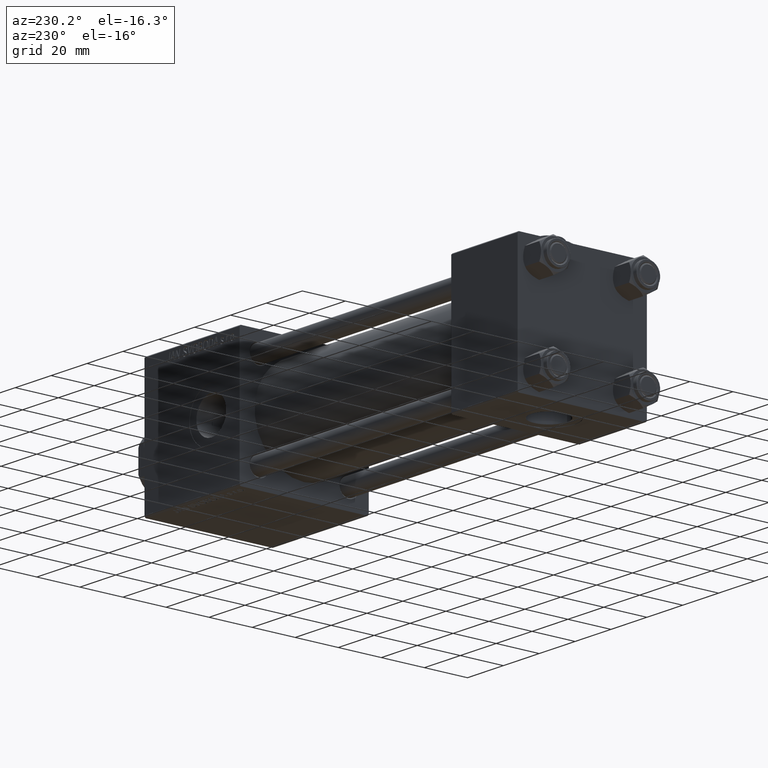
[diagram: clean part render]
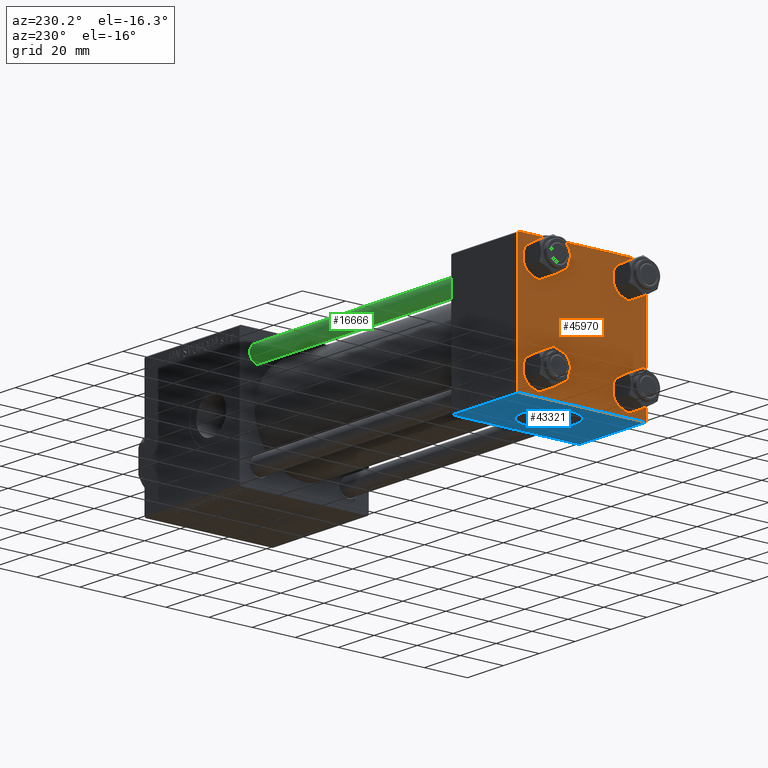
[diagram: same view with three faces highlighted in distinct colors, each labeled with its STEP entity id]
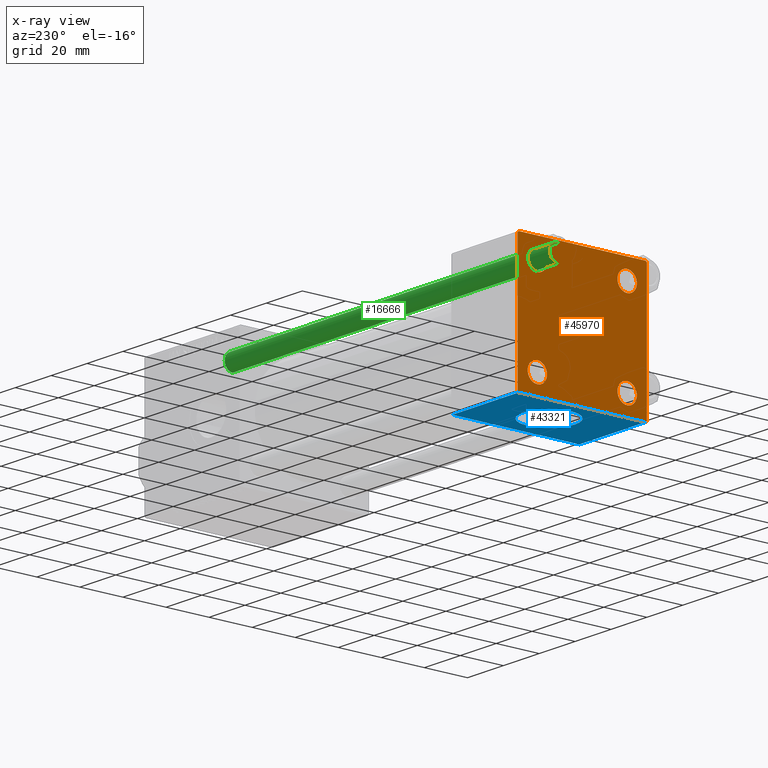
[diagram: x-ray of the same camera — body ghosted, the three highlighted faces saturated]
A machine part, auxiliary view with three faces highlighted in distinct colors.
The next image is the same camera in x-ray (body ghosted, the three faces saturated) — at least one of them is partly hidden behind the body in this view.
Their STEP definitions:

[orange] entity #45970 — the highlighted planar face has unit normal (-1, 0, 0).
#754 = FACE_BOUND ( 'NONE', #36782, .T. ) ;
#982 = EDGE_CURVE ( 'NONE', #6886, #13692, #39323, .T. ) ;
#1013 = DIRECTION ( 'NONE',  ( -0.000000000000000000, 0.000000000000000000, 1.000000000000000000 ) ) ;
#1236 = CARTESIAN_POINT ( 'NONE',  ( 0.000000000000000000, -20.84999999999999076, 20.85000000000000497 ) ) ;
#1262 = DIRECTION ( 'NONE',  ( 1.000000000000000000, -0.000000000000000000, 0.000000000000000000 ) ) ;
#1392 = ORIENTED_EDGE ( 'NONE', *, *, #18025, .T. ) ;
#1757 = EDGE_CURVE ( 'NONE', #47265, #15448, #12232, .T. ) ;
#1843 = LINE ( 'NONE', #6554, #37030 ) ;
#2146 = CARTESIAN_POINT ( 'NONE',  ( 0.000000000000000000, 29.49999999999997868, -30.00000000000000000 ) ) ;
#2162 = ORIENTED_EDGE ( 'NONE', *, *, #13747, .F. ) ;
#3299 = EDGE_LOOP ( 'NONE', ( #3541, #23882, #20910, #31241, #2162, #12228, #50567, #43318 ) ) ;
#3541 = ORIENTED_EDGE ( 'NONE', *, *, #13705, .T. ) ;
#4228 = CIRCLE ( 'NONE', #21070, 4.500000000000017764 ) ;
#5073 = CARTESIAN_POINT ( 'NONE',  ( 0.000000000000000000, 29.99999999999999289, 30.00000000000000000 ) ) ;
#5479 = CARTESIAN_POINT ( 'NONE',  ( 0.000000000000000000, 0.000000000000000000, 0.000000000000000000 ) ) ;
#5732 = EDGE_CURVE ( 'NONE', #17704, #6859, #29227, .T. ) ;
#5848 = VERTEX_POINT ( 'NONE', #19386 ) ;
#6258 = VECTOR ( 'NONE', #51529, 1000.000000000000114 ) ;
#6371 = EDGE_CURVE ( 'NONE', #29840, #6419, #27304, .T. ) ;
#6419 = VERTEX_POINT ( 'NONE', #29048 ) ;
#6554 = CARTESIAN_POINT ( 'NONE',  ( -0.000000000000000000, -29.74999999999999645, 29.74999999999999645 ) ) ;
#6728 = EDGE_CURVE ( 'NONE', #28764, #28138, #35417, .T. ) ;
#6859 = VERTEX_POINT ( 'NONE', #27480 ) ;
#6886 = VERTEX_POINT ( 'NONE', #20339 ) ;
#8365 = DIRECTION ( 'NONE',  ( 1.000000000000000000, -0.000000000000000000, 0.000000000000000000 ) ) ;
#8906 = FACE_BOUND ( 'NONE', #43920, .T. ) ;
#9105 = EDGE_CURVE ( 'NONE', #47594, #13857, #41762, .T. ) ;
#9426 = DIRECTION ( 'NONE',  ( 0.000000000000000000, 0.7071067811865474617, -0.7071067811865474617 ) ) ;
#10473 = DIRECTION ( 'NONE',  ( 0.000000000000000000, 0.000000000000000000, 1.000000000000000000 ) ) ;
#10574 = DIRECTION ( 'NONE',  ( 0.000000000000000000, 0.000000000000000000, 1.000000000000000000 ) ) ;
#10995 = EDGE_CURVE ( 'NONE', #5848, #19858, #37603, .T. ) ;
#12147 = CARTESIAN_POINT ( 'NONE',  ( 0.000000000000000000, -20.84999999999999076, -16.34999999999998721 ) ) ;
#12228 = ORIENTED_EDGE ( 'NONE', *, *, #43879, .T. ) ;
#12232 = CIRCLE ( 'NONE', #45980, 4.500000000000017764 ) ;
#12680 = AXIS2_PLACEMENT_3D ( 'NONE', #5479, #13639, #1013 ) ;
#12863 = DIRECTION ( 'NONE',  ( 0.000000000000000000, 0.000000000000000000, 1.000000000000000000 ) ) ;
#12869 = PLANE ( 'NONE',  #12680 ) ;
#13358 = DIRECTION ( 'NONE',  ( 0.000000000000000000, 0.000000000000000000, 1.000000000000000000 ) ) ;
#13376 = FACE_BOUND ( 'NONE', #43162, .T. ) ;
#13639 = DIRECTION ( 'NONE',  ( -1.000000000000000000, 0.000000000000000000, -0.000000000000000000 ) ) ;
#13692 = VERTEX_POINT ( 'NONE', #2146 ) ;
#13705 = EDGE_CURVE ( 'NONE', #6859, #6886, #50199, .T. ) ;
#13742 = DIRECTION ( 'NONE',  ( 0.000000000000000000, 0.000000000000000000, -1.000000000000000000 ) ) ;
#13747 = EDGE_CURVE ( 'NONE', #21481, #28138, #33845, .T. ) ;
#13844 = AXIS2_PLACEMENT_3D ( 'NONE', #38318, #45998, #10574 ) ;
#13857 = VERTEX_POINT ( 'NONE', #34542 ) ;
#14309 = VECTOR ( 'NONE', #46236, 1000.000000000000000 ) ;
#15003 = AXIS2_PLACEMENT_3D ( 'NONE', #23664, #15470, #10473 ) ;
#15448 = VERTEX_POINT ( 'NONE', #42820 ) ;
#15470 = DIRECTION ( 'NONE',  ( 1.000000000000000000, -0.000000000000000000, 0.000000000000000000 ) ) ;
#16071 = CARTESIAN_POINT ( 'NONE',  ( 0.000000000000000000, 29.74999999999957723, -29.75000000000040501 ) ) ;
#16551 = CARTESIAN_POINT ( 'NONE',  ( 0.000000000000000000, 20.84999999999999787, -20.85000000000000142 ) ) ;
#16790 = DIRECTION ( 'NONE',  ( 0.000000000000000000, 0.000000000000000000, 1.000000000000000000 ) ) ;
#17704 = VERTEX_POINT ( 'NONE', #29543 ) ;
#17948 = CARTESIAN_POINT ( 'NONE',  ( 0.000000000000000000, 29.99999999999999289, 30.00000000000000000 ) ) ;
#18025 = EDGE_CURVE ( 'NONE', #19858, #5848, #45340, .T. ) ;
#18071 = EDGE_CURVE ( 'NONE', #13857, #47594, #22537, .T. ) ;
#19350 = ORIENTED_EDGE ( 'NONE', *, *, #10995, .T. ) ;
#19386 = CARTESIAN_POINT ( 'NONE',  ( 0.000000000000000000, 20.84999999999999787, -25.35000000000001918 ) ) ;
#19699 = DIRECTION ( 'NONE',  ( 1.000000000000000000, -0.000000000000000000, 0.000000000000000000 ) ) ;
#19858 = VERTEX_POINT ( 'NONE', #23135 ) ;
#20339 = CARTESIAN_POINT ( 'NONE',  ( 0.000000000000000000, 29.99999999999999289, -29.50000000000000000 ) ) ;
#20669 = AXIS2_PLACEMENT_3D ( 'NONE', #1236, #24713, #40833 ) ;
#20910 = ORIENTED_EDGE ( 'NONE', *, *, #37842, .T. ) ;
#21032 = FACE_OUTER_BOUND ( 'NONE', #3299, .T. ) ;
#21070 = AXIS2_PLACEMENT_3D ( 'NONE', #45276, #48978, #40791 ) ;
#21481 = VERTEX_POINT ( 'NONE', #51365 ) ;
#22310 = DIRECTION ( 'NONE',  ( 1.000000000000000000, -0.000000000000000000, 0.000000000000000000 ) ) ;
#22537 = CIRCLE ( 'NONE', #49560, 4.500000000000017764 ) ;
#23135 = CARTESIAN_POINT ( 'NONE',  ( 0.000000000000000000, 20.84999999999999787, -16.34999999999998366 ) ) ;
#23268 = AXIS2_PLACEMENT_3D ( 'NONE', #16551, #1262, #12863 ) ;
#23664 = CARTESIAN_POINT ( 'NONE',  ( 0.000000000000000000, 20.84999999999999787, 20.85000000000000142 ) ) ;
#23708 = DIRECTION ( 'NONE',  ( 0.000000000000000000, -1.000000000000000000, -1.156482317317871725E-16 ) ) ;
#23799 = ORIENTED_EDGE ( 'NONE', *, *, #36756, .T. ) ;
#23839 = EDGE_CURVE ( 'NONE', #6419, #29840, #4228, .T. ) ;
#23882 = ORIENTED_EDGE ( 'NONE', *, *, #982, .T. ) ;
#24208 = CARTESIAN_POINT ( 'NONE',  ( 0.000000000000000000, 20.84999999999999787, 20.85000000000000142 ) ) ;
#24713 = DIRECTION ( 'NONE',  ( 1.000000000000000000, -0.000000000000000000, 0.000000000000000000 ) ) ;
#24860 = CARTESIAN_POINT ( 'NONE',  ( 0.000000000000000000, -29.50000000000000000, -30.00000000000000711 ) ) ;
#24913 = EDGE_LOOP ( 'NONE', ( #23799, #42111 ) ) ;
#24988 = CARTESIAN_POINT ( 'NONE',  ( 0.000000000000000000, 29.74999999999999645, 29.74999999999999645 ) ) ;
#25894 = DIRECTION ( 'NONE',  ( 0.000000000000000000, 0.000000000000000000, -1.000000000000000000 ) ) ;
#26633 = ORIENTED_EDGE ( 'NONE', *, *, #9105, .T. ) ;
#26697 = VECTOR ( 'NONE', #25894, 1000.000000000000000 ) ;
#27304 = CIRCLE ( 'NONE', #13844, 4.500000000000017764 ) ;
#27423 = CARTESIAN_POINT ( 'NONE',  ( 0.000000000000000000, -20.84999999999999076, 25.35000000000002274 ) ) ;
#27480 = CARTESIAN_POINT ( 'NONE',  ( 0.000000000000000000, 29.99999999999999289, 29.50000000000000000 ) ) ;
#28061 = EDGE_CURVE ( 'NONE', #17704, #42564, #37789, .T. ) ;
#28138 = VERTEX_POINT ( 'NONE', #43041 ) ;
#28764 = VERTEX_POINT ( 'NONE', #24860 ) ;
#29048 = CARTESIAN_POINT ( 'NONE',  ( 0.000000000000000000, -20.84999999999999076, -25.35000000000002274 ) ) ;
#29227 = LINE ( 'NONE', #24988, #43911 ) ;
#29543 = CARTESIAN_POINT ( 'NONE',  ( 0.000000000000000000, 29.49999999999999289, 30.00000000000000000 ) ) ;
#29811 = DIRECTION ( 'NONE',  ( -0.000000000000000000, 0.7071067811865474617, 0.7071067811865474617 ) ) ;
#29840 = VERTEX_POINT ( 'NONE', #12147 ) ;
#31037 = ORIENTED_EDGE ( 'NONE', *, *, #23839, .T. ) ;
#31241 = ORIENTED_EDGE ( 'NONE', *, *, #6728, .T. ) ;
#33556 = AXIS2_PLACEMENT_3D ( 'NONE', #48254, #8365, #44023 ) ;
#33675 = CARTESIAN_POINT ( 'NONE',  ( 0.000000000000000000, 20.84999999999999787, 16.34999999999998366 ) ) ;
#33845 = LINE ( 'NONE', #45731, #26697 ) ;
#34542 = CARTESIAN_POINT ( 'NONE',  ( 0.000000000000000000, -20.84999999999999076, 16.34999999999998721 ) ) ;
#35417 = LINE ( 'NONE', #47311, #6258 ) ;
#35569 = ORIENTED_EDGE ( 'NONE', *, *, #6371, .T. ) ;
#36756 = EDGE_CURVE ( 'NONE', #15448, #47265, #52137, .T. ) ;
#36782 = EDGE_LOOP ( 'NONE', ( #1392, #19350 ) ) ;
#37030 = VECTOR ( 'NONE', #29811, 1000.000000000000114 ) ;
#37603 = CIRCLE ( 'NONE', #23268, 4.500000000000017764 ) ;
#37679 = FACE_BOUND ( 'NONE', #24913, .T. ) ;
#37789 = LINE ( 'NONE', #5073, #14309 ) ;
#37842 = EDGE_CURVE ( 'NONE', #13692, #28764, #47489, .T. ) ;
#38318 = CARTESIAN_POINT ( 'NONE',  ( 0.000000000000000000, -20.84999999999999076, -20.85000000000000497 ) ) ;
#39323 = LINE ( 'NONE', #16071, #47658 ) ;
#39797 = CARTESIAN_POINT ( 'NONE',  ( 0.000000000000000000, -20.84999999999999076, 20.85000000000000497 ) ) ;
#39855 = DIRECTION ( 'NONE',  ( -0.000000000000000000, -0.7071067811865574537, -0.7071067811865376918 ) ) ;
#40791 = DIRECTION ( 'NONE',  ( 0.000000000000000000, 0.000000000000000000, 1.000000000000000000 ) ) ;
#40833 = DIRECTION ( 'NONE',  ( 0.000000000000000000, 0.000000000000000000, 1.000000000000000000 ) ) ;
#41762 = CIRCLE ( 'NONE', #20669, 4.500000000000017764 ) ;
#42111 = ORIENTED_EDGE ( 'NONE', *, *, #1757, .T. ) ;
#42564 = VERTEX_POINT ( 'NONE', #45326 ) ;
#42820 = CARTESIAN_POINT ( 'NONE',  ( 0.000000000000000000, 20.84999999999999787, 25.35000000000001918 ) ) ;
#42960 = ORIENTED_EDGE ( 'NONE', *, *, #18071, .T. ) ;
#43041 = CARTESIAN_POINT ( 'NONE',  ( 0.000000000000000000, -30.00000000000000000, -29.50000000000001776 ) ) ;
#43162 = EDGE_LOOP ( 'NONE', ( #26633, #42960 ) ) ;
#43318 = ORIENTED_EDGE ( 'NONE', *, *, #5732, .T. ) ;
#43879 = EDGE_CURVE ( 'NONE', #21481, #42564, #1843, .T. ) ;
#43911 = VECTOR ( 'NONE', #9426, 1000.000000000000114 ) ;
#43920 = EDGE_LOOP ( 'NONE', ( #35569, #31037 ) ) ;
#44023 = DIRECTION ( 'NONE',  ( 0.000000000000000000, 0.000000000000000000, 1.000000000000000000 ) ) ;
#45276 = CARTESIAN_POINT ( 'NONE',  ( 0.000000000000000000, -20.84999999999999076, -20.85000000000000497 ) ) ;
#45326 = CARTESIAN_POINT ( 'NONE',  ( 0.000000000000000000, -29.49999999999998579, 29.99999999999999289 ) ) ;
#45340 = CIRCLE ( 'NONE', #33556, 4.500000000000017764 ) ;
#45731 = CARTESIAN_POINT ( 'NONE',  ( 0.000000000000000000, -30.00000000000000000, 29.99999999999999289 ) ) ;
#45970 = ADVANCED_FACE ( 'NONE', ( #13376, #8906, #754, #37679, #21032 ), #12869, .T. ) ;
#45980 = AXIS2_PLACEMENT_3D ( 'NONE', #24208, #22310, #13358 ) ;
#45998 = DIRECTION ( 'NONE',  ( 1.000000000000000000, -0.000000000000000000, 0.000000000000000000 ) ) ;
#46236 = DIRECTION ( 'NONE',  ( 0.000000000000000000, -1.000000000000000000, -1.156482317317871725E-16 ) ) ;
#47265 = VERTEX_POINT ( 'NONE', #33675 ) ;
#47311 = CARTESIAN_POINT ( 'NONE',  ( 0.000000000000000000, -29.75000000000001066, -29.75000000000001066 ) ) ;
#47489 = LINE ( 'NONE', #47746, #52166 ) ;
#47594 = VERTEX_POINT ( 'NONE', #27423 ) ;
#47658 = VECTOR ( 'NONE', #39855, 999.9999999999998863 ) ;
#47746 = CARTESIAN_POINT ( 'NONE',  ( 0.000000000000000000, 29.99999999999999289, -30.00000000000000000 ) ) ;
#48254 = CARTESIAN_POINT ( 'NONE',  ( 0.000000000000000000, 20.84999999999999787, -20.85000000000000142 ) ) ;
#48978 = DIRECTION ( 'NONE',  ( 1.000000000000000000, -0.000000000000000000, 0.000000000000000000 ) ) ;
#49489 = VECTOR ( 'NONE', #13742, 1000.000000000000000 ) ;
#49560 = AXIS2_PLACEMENT_3D ( 'NONE', #39797, #19699, #16790 ) ;
#50199 = LINE ( 'NONE', #17948, #49489 ) ;
#50567 = ORIENTED_EDGE ( 'NONE', *, *, #28061, .F. ) ;
#51365 = CARTESIAN_POINT ( 'NONE',  ( 0.000000000000000000, -30.00000000000000000, 29.49999999999999289 ) ) ;
#51529 = DIRECTION ( 'NONE',  ( 0.000000000000000000, -0.7071067811865474617, 0.7071067811865474617 ) ) ;
#52137 = CIRCLE ( 'NONE', #15003, 4.500000000000017764 ) ;
#52166 = VECTOR ( 'NONE', #23708, 1000.000000000000000 ) ;

[blue] entity #43321 — the highlighted planar face has unit normal (0, 0, -1).
#1042 = ORIENTED_EDGE ( 'NONE', *, *, #31456, .T. ) ;
#1725 = CARTESIAN_POINT ( 'NONE',  ( 37.00000000000000000, 29.99999999999999289, -30.00000000000000000 ) ) ;
#2146 = CARTESIAN_POINT ( 'NONE',  ( 0.000000000000000000, 29.49999999999997868, -30.00000000000000000 ) ) ;
#2409 = DIRECTION ( 'NONE',  ( 0.000000000000000000, 1.000000000000000000, -2.891205793294677833E-16 ) ) ;
#3870 = CARTESIAN_POINT ( 'NONE',  ( 18.50000000000000355, 12.00000000000000355, -30.00000000000000711 ) ) ;
#4570 = LINE ( 'NONE', #20635, #27906 ) ;
#5124 = CIRCLE ( 'NONE', #43052, 12.00000000000000178 ) ;
#7350 = VERTEX_POINT ( 'NONE', #3870 ) ;
#7518 = CIRCLE ( 'NONE', #46308, 12.00000000000000178 ) ;
#11073 = DIRECTION ( 'NONE',  ( 1.000000000000000000, 0.000000000000000000, 0.000000000000000000 ) ) ;
#13692 = VERTEX_POINT ( 'NONE', #2146 ) ;
#13746 = CARTESIAN_POINT ( 'NONE',  ( 18.50000000000000355, 2.265018109976774967E-15, -30.00000000000000355 ) ) ;
#13832 = DIRECTION ( 'NONE',  ( 0.000000000000000000, -1.000000000000000000, -1.156482317317871725E-16 ) ) ;
#16050 = CARTESIAN_POINT ( 'NONE',  ( 18.50000000000000355, -12.00000000000000000, -30.00000000000000000 ) ) ;
#18013 = CARTESIAN_POINT ( 'NONE',  ( 18.50000000000000355, 2.265018109976774967E-15, -30.00000000000000355 ) ) ;
#18273 = DIRECTION ( 'NONE',  ( 0.000000000000000000, 1.000000000000000000, -2.891205793294677833E-16 ) ) ;
#19762 = LINE ( 'NONE', #44085, #34592 ) ;
#19933 = ORIENTED_EDGE ( 'NONE', *, *, #29394, .T. ) ;
#20501 = DIRECTION ( 'NONE',  ( 0.000000000000000000, 1.000000000000000000, 1.156482317317871725E-16 ) ) ;
#20635 = CARTESIAN_POINT ( 'NONE',  ( 0.000000000000000000, -29.50000000000001066, -30.00000000000000711 ) ) ;
#21013 = CARTESIAN_POINT ( 'NONE',  ( 37.00000000000000000, 29.99999999999999289, -30.00000000000000000 ) ) ;
#21200 = EDGE_CURVE ( 'NONE', #39080, #7350, #7518, .T. ) ;
#22815 = VERTEX_POINT ( 'NONE', #47303 ) ;
#23518 = EDGE_LOOP ( 'NONE', ( #40024, #28926 ) ) ;
#23522 = AXIS2_PLACEMENT_3D ( 'NONE', #21013, #40588, #20501 ) ;
#23708 = DIRECTION ( 'NONE',  ( 0.000000000000000000, -1.000000000000000000, -1.156482317317871725E-16 ) ) ;
#24468 = FACE_BOUND ( 'NONE', #23518, .T. ) ;
#24860 = CARTESIAN_POINT ( 'NONE',  ( 0.000000000000000000, -29.50000000000000000, -30.00000000000000711 ) ) ;
#25389 = DIRECTION ( 'NONE',  ( -1.000000000000000000, 0.000000000000000000, 0.000000000000000000 ) ) ;
#27906 = VECTOR ( 'NONE', #25389, 1000.000000000000000 ) ;
#28423 = ORIENTED_EDGE ( 'NONE', *, *, #42209, .T. ) ;
#28553 = EDGE_CURVE ( 'NONE', #7350, #39080, #5124, .T. ) ;
#28640 = ORIENTED_EDGE ( 'NONE', *, *, #37842, .F. ) ;
#28764 = VERTEX_POINT ( 'NONE', #24860 ) ;
#28926 = ORIENTED_EDGE ( 'NONE', *, *, #21200, .F. ) ;
#28963 = FACE_OUTER_BOUND ( 'NONE', #46069, .T. ) ;
#29394 = EDGE_CURVE ( 'NONE', #41566, #28764, #4570, .T. ) ;
#31456 = EDGE_CURVE ( 'NONE', #22815, #41566, #37878, .T. ) ;
#34592 = VECTOR ( 'NONE', #11073, 1000.000000000000000 ) ;
#37842 = EDGE_CURVE ( 'NONE', #13692, #28764, #47489, .T. ) ;
#37878 = LINE ( 'NONE', #1725, #38938 ) ;
#38938 = VECTOR ( 'NONE', #13832, 1000.000000000000000 ) ;
#39080 = VERTEX_POINT ( 'NONE', #16050 ) ;
#40024 = ORIENTED_EDGE ( 'NONE', *, *, #28553, .F. ) ;
#40588 = DIRECTION ( 'NONE',  ( 0.000000000000000000, 1.156482317317871725E-16, -1.000000000000000000 ) ) ;
#41566 = VERTEX_POINT ( 'NONE', #43286 ) ;
#42209 = EDGE_CURVE ( 'NONE', #13692, #22815, #19762, .T. ) ;
#42282 = DIRECTION ( 'NONE',  ( 0.000000000000000000, -1.734723475976806848E-16, -1.000000000000000000 ) ) ;
#43052 = AXIS2_PLACEMENT_3D ( 'NONE', #18013, #45529, #18273 ) ;
#43286 = CARTESIAN_POINT ( 'NONE',  ( 37.00000000000000000, -29.50000000000000000, -30.00000000000000711 ) ) ;
#43321 = ADVANCED_FACE ( 'NONE', ( #24468, #28963 ), #44558, .T. ) ;
#44085 = CARTESIAN_POINT ( 'NONE',  ( 37.00000000000000000, 29.49999999999997868, -30.00000000000000000 ) ) ;
#44558 = PLANE ( 'NONE',  #23522 ) ;
#45529 = DIRECTION ( 'NONE',  ( 0.000000000000000000, -1.734723475976806848E-16, -1.000000000000000000 ) ) ;
#46069 = EDGE_LOOP ( 'NONE', ( #28640, #28423, #1042, #19933 ) ) ;
#46308 = AXIS2_PLACEMENT_3D ( 'NONE', #13746, #42282, #2409 ) ;
#47303 = CARTESIAN_POINT ( 'NONE',  ( 37.00000000000000000, 29.49999999999997868, -30.00000000000000000 ) ) ;
#47489 = LINE ( 'NONE', #47746, #52166 ) ;
#47746 = CARTESIAN_POINT ( 'NONE',  ( 0.000000000000000000, 29.99999999999999289, -30.00000000000000000 ) ) ;
#52166 = VECTOR ( 'NONE', #23708, 1000.000000000000000 ) ;

[green] entity #16666 — the highlighted cylindrical surface (edge-blend (fillet) strip) has radius 4 mm, axis along (-1, 0, 0).
#614 = EDGE_CURVE ( 'NONE', #36319, #6393, #7969, .T. ) ;
#2779 = VERTEX_POINT ( 'NONE', #12535 ) ;
#3427 = VECTOR ( 'NONE', #48793, 1000.000000000000000 ) ;
#4187 = LINE ( 'NONE', #20260, #3427 ) ;
#4804 = AXIS2_PLACEMENT_3D ( 'NONE', #14240, #51482, #39325 ) ;
#5813 = EDGE_LOOP ( 'NONE', ( #51533, #42668, #30910, #44474 ) ) ;
#6393 = VERTEX_POINT ( 'NONE', #12418 ) ;
#6861 = CYLINDRICAL_SURFACE ( 'NONE', #4804, 4.000000000000000000 ) ;
#7969 = CIRCLE ( 'NONE', #14684, 4.000000000000000000 ) ;
#9260 = CARTESIAN_POINT ( 'NONE',  ( -4.000000000000000000, 0.000000000000000000, 181.5000000000000284 ) ) ;
#12418 = CARTESIAN_POINT ( 'NONE',  ( 4.000000000000000000, 4.898587196589412829E-16, 181.5000000000000284 ) ) ;
#12535 = CARTESIAN_POINT ( 'NONE',  ( 4.000000000000000000, 4.898587196589412829E-16, 0.4999999999999726885 ) ) ;
#14240 = CARTESIAN_POINT ( 'NONE',  ( 0.000000000000000000, 0.000000000000000000, 182.0000000000000000 ) ) ;
#14684 = AXIS2_PLACEMENT_3D ( 'NONE', #42121, #29962, #22035 ) ;
#15065 = LINE ( 'NONE', #35144, #18835 ) ;
#16117 = DIRECTION ( 'NONE',  ( -0.000000000000000000, -0.000000000000000000, -1.000000000000000000 ) ) ;
#16666 = ADVANCED_FACE ( 'NONE', ( #19231 ), #6861, .T. ) ;
#18835 = VECTOR ( 'NONE', #16117, 1000.000000000000000 ) ;
#19231 = FACE_OUTER_BOUND ( 'NONE', #5813, .T. ) ;
#20260 = CARTESIAN_POINT ( 'NONE',  ( -4.000000000000000000, 0.000000000000000000, 182.0000000000000000 ) ) ;
#20362 = EDGE_CURVE ( 'NONE', #2779, #43753, #33623, .T. ) ;
#22035 = DIRECTION ( 'NONE',  ( 1.000000000000000000, 0.000000000000000000, 0.000000000000000000 ) ) ;
#23016 = DIRECTION ( 'NONE',  ( 1.000000000000000000, 0.000000000000000000, 0.000000000000000000 ) ) ;
#27788 = CARTESIAN_POINT ( 'NONE',  ( -4.000000000000000000, 0.000000000000000000, 0.4999999999999726885 ) ) ;
#29962 = DIRECTION ( 'NONE',  ( 0.000000000000000000, 0.000000000000000000, -1.000000000000000000 ) ) ;
#30910 = ORIENTED_EDGE ( 'NONE', *, *, #20362, .T. ) ;
#30941 = CARTESIAN_POINT ( 'NONE',  ( 0.000000000000000000, 0.000000000000000000, 0.4999999999999726885 ) ) ;
#33167 = EDGE_CURVE ( 'NONE', #6393, #2779, #15065, .T. ) ;
#33623 = CIRCLE ( 'NONE', #37831, 4.000000000000000000 ) ;
#35144 = CARTESIAN_POINT ( 'NONE',  ( 4.000000000000000000, 4.898587196589412829E-16, 182.0000000000000000 ) ) ;
#36319 = VERTEX_POINT ( 'NONE', #9260 ) ;
#37831 = AXIS2_PLACEMENT_3D ( 'NONE', #30941, #42830, #23016 ) ;
#39325 = DIRECTION ( 'NONE',  ( -1.000000000000000000, 0.000000000000000000, 0.000000000000000000 ) ) ;
#42121 = CARTESIAN_POINT ( 'NONE',  ( 0.000000000000000000, 0.000000000000000000, 181.5000000000000284 ) ) ;
#42668 = ORIENTED_EDGE ( 'NONE', *, *, #33167, .T. ) ;
#42830 = DIRECTION ( 'NONE',  ( -0.000000000000000000, -0.000000000000000000, 1.000000000000000000 ) ) ;
#43753 = VERTEX_POINT ( 'NONE', #27788 ) ;
#44474 = ORIENTED_EDGE ( 'NONE', *, *, #45908, .F. ) ;
#45908 = EDGE_CURVE ( 'NONE', #36319, #43753, #4187, .T. ) ;
#48793 = DIRECTION ( 'NONE',  ( -0.000000000000000000, -0.000000000000000000, -1.000000000000000000 ) ) ;
#51482 = DIRECTION ( 'NONE',  ( -0.000000000000000000, -0.000000000000000000, -1.000000000000000000 ) ) ;
#51533 = ORIENTED_EDGE ( 'NONE', *, *, #614, .T. ) ;